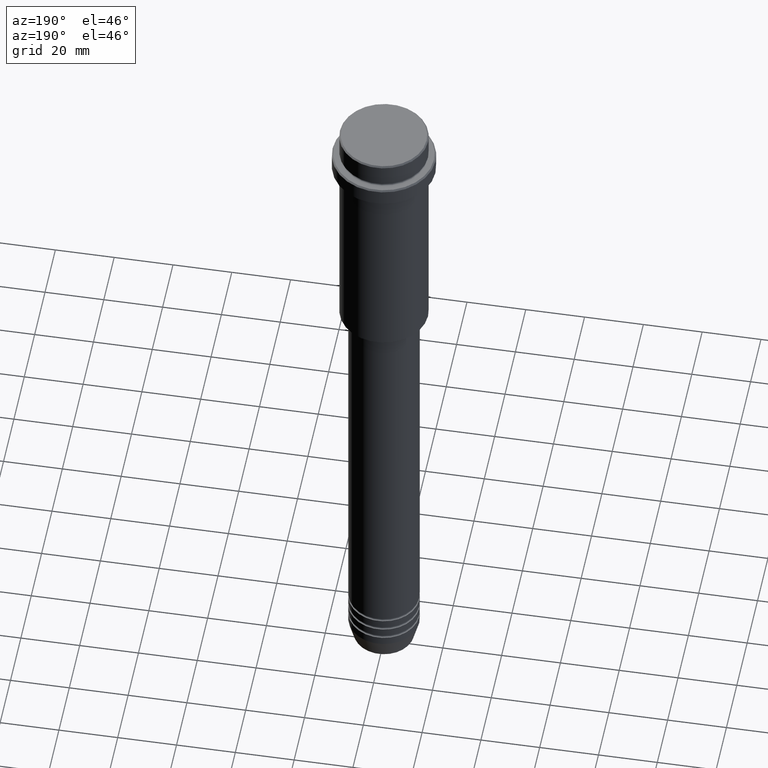
[diagram: clean part render]
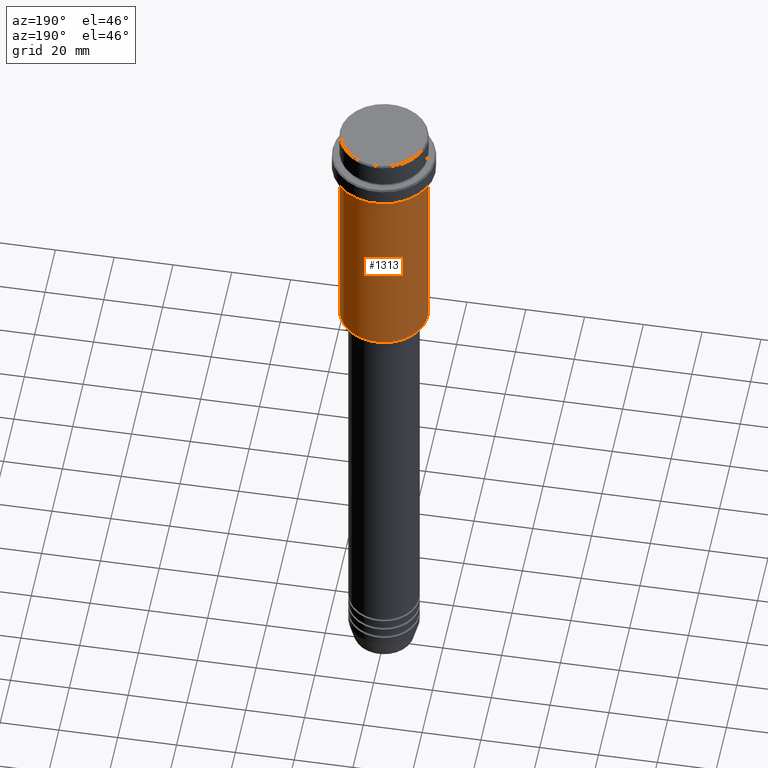
[diagram: same view with one face highlighted and labeled with its STEP entity id]
A machine part, auxiliary view. The second image highlights one B-rep face of the part: STEP entity #1313.
In plain terms, the highlighted cylindrical surface (partial cylindrical patch) has radius 15 mm, axis along (-0, -0, 1).
Its self-contained STEP definition (entity closure, byte-faithful):
#78 = ORIENTED_EDGE ( 'NONE', *, *, #506, .F. ) ;
#110 = DIRECTION ( 'NONE',  ( -0.000000000000000000, -0.000000000000000000, 1.000000000000000000 ) ) ;
#114 = EDGE_LOOP ( 'NONE', ( #248, #328, #350, #78 ) ) ;
#130 = AXIS2_PLACEMENT_3D ( 'NONE', #1154, #802, #920 ) ;
#161 = VERTEX_POINT ( 'NONE', #285 ) ;
#209 = LINE ( 'NONE', #865, #310 ) ;
#248 = ORIENTED_EDGE ( 'NONE', *, *, #807, .T. ) ;
#285 = CARTESIAN_POINT ( 'NONE',  ( 15.00000000000000000, 0.000000000000000000, -84.49999999999992895 ) ) ;
#310 = VECTOR ( 'NONE', #110, 1000.000000000000000 ) ;
#328 = ORIENTED_EDGE ( 'NONE', *, *, #552, .T. ) ;
#329 = CARTESIAN_POINT ( 'NONE',  ( -15.00000000000000000, 1.836970198721029589E-15, -84.49999999999992895 ) ) ;
#350 = ORIENTED_EDGE ( 'NONE', *, *, #1020, .F. ) ;
#372 = DIRECTION ( 'NONE',  ( -0.000000000000000000, -0.000000000000000000, 1.000000000000000000 ) ) ;
#407 = CARTESIAN_POINT ( 'NONE',  ( 0.000000000000000000, 0.000000000000000000, -16.00000000000000000 ) ) ;
#506 = EDGE_CURVE ( 'NONE', #161, #1274, #849, .T. ) ;
#512 = CIRCLE ( 'NONE', #130, 15.00000000000000000 ) ;
#526 = CARTESIAN_POINT ( 'NONE',  ( 15.00000000000000000, 0.000000000000000000, 0.000000000000000000 ) ) ;
#530 = DIRECTION ( 'NONE',  ( -0.000000000000000000, -0.000000000000000000, 1.000000000000000000 ) ) ;
#538 = AXIS2_PLACEMENT_3D ( 'NONE', #919, #372, #805 ) ;
#552 = EDGE_CURVE ( 'NONE', #1144, #1105, #209, .T. ) ;
#590 = FACE_OUTER_BOUND ( 'NONE', #114, .T. ) ;
#596 = CYLINDRICAL_SURFACE ( 'NONE', #538, 15.00000000000000000 ) ;
#601 = VECTOR ( 'NONE', #729, 1000.000000000000000 ) ;
#648 = CARTESIAN_POINT ( 'NONE',  ( -15.00000000000000355, 1.836970198721029983E-15, -16.00000000000000000 ) ) ;
#729 = DIRECTION ( 'NONE',  ( -0.000000000000000000, -0.000000000000000000, 1.000000000000000000 ) ) ;
#802 = DIRECTION ( 'NONE',  ( -0.000000000000000000, -0.000000000000000000, 1.000000000000000000 ) ) ;
#805 = DIRECTION ( 'NONE',  ( 1.000000000000000000, 0.000000000000000000, 0.000000000000000000 ) ) ;
#807 = EDGE_CURVE ( 'NONE', #161, #1144, #512, .T. ) ;
#849 = LINE ( 'NONE', #526, #601 ) ;
#865 = CARTESIAN_POINT ( 'NONE',  ( -15.00000000000000000, 1.836970198721029589E-15, 0.000000000000000000 ) ) ;
#919 = CARTESIAN_POINT ( 'NONE',  ( 0.000000000000000000, 0.000000000000000000, 0.000000000000000000 ) ) ;
#920 = DIRECTION ( 'NONE',  ( -1.000000000000000000, 0.000000000000000000, 0.000000000000000000 ) ) ;
#975 = DIRECTION ( 'NONE',  ( 1.000000000000000000, 0.000000000000000000, 0.000000000000000000 ) ) ;
#977 = CIRCLE ( 'NONE', #1350, 15.00000000000000178 ) ;
#1020 = EDGE_CURVE ( 'NONE', #1274, #1105, #977, .T. ) ;
#1105 = VERTEX_POINT ( 'NONE', #648 ) ;
#1134 = CARTESIAN_POINT ( 'NONE',  ( 15.00000000000000178, 0.000000000000000000, -16.00000000000000000 ) ) ;
#1144 = VERTEX_POINT ( 'NONE', #329 ) ;
#1154 = CARTESIAN_POINT ( 'NONE',  ( 0.000000000000000000, 0.000000000000000000, -84.49999999999992895 ) ) ;
#1274 = VERTEX_POINT ( 'NONE', #1134 ) ;
#1313 = ADVANCED_FACE ( 'NONE', ( #590 ), #596, .T. ) ;
#1350 = AXIS2_PLACEMENT_3D ( 'NONE', #407, #530, #975 ) ;